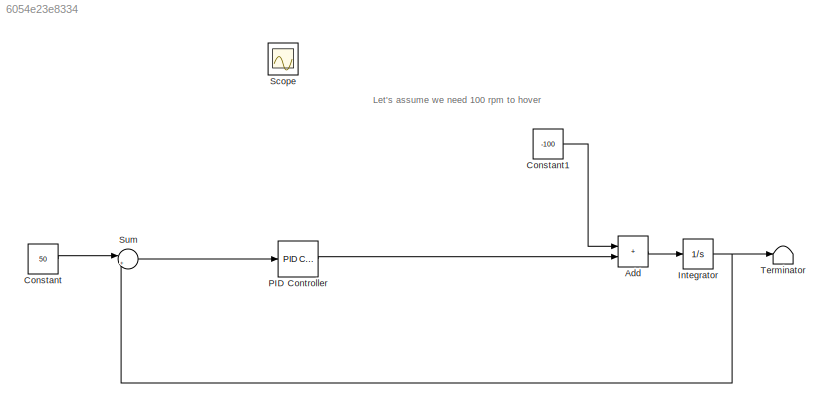
MODEL slx_6054e23e8334
KIND model
CONFIG AbsTol = auto
CONFIG EnableMultiTasking = off
CONFIG FixedStep = auto
CONFIG MaxStep = auto
CONFIG MinStep = auto
CONFIG RelTol = 1e-3
CONFIG SampleTimeConstraint = Unconstrained
CONFIG SolverName = VariableStepAuto
CONFIG StartTime = 0.0
CONFIG StopTime = 50
BLOCK [Sum] Add
  IconShape = rectangular
BLOCK [Constant] Constant
  Value = 50
BLOCK [Constant] Constant1
  Value = -100
BLOCK [Integrator] Integrator
BLOCK [Reference] PID Controller  REF=slpidlib/PID Controller
  LibrarySourceBlock = simulink/Continuous/PID Controller
  SourceBlock = slpidlib/PID Controller
  SourceType = PID 1dof
BLOCK [Scope] Scope
  Floating = off
  IOType = viewer
  NumInputPorts = 1
  ScopeSpecificationString = Simulink.scopes.TimeScopeBlockCfg('CurrentConfiguration', extmgr.ConfigurationSet(extmgr.Configuration('Core','General UI',true),extmgr.Configuration('Core','Source UI',true),extmgr.Configuration('Sources','WiredSimulink',true),extmgr.Configuration('Visuals','Time Domain',true,'SerializedDisplays',{struct('MinYLimReal','-17.88871','MaxYLimReal','76.36266','YLabelReal','','MinYLimMag','0.00000','Ma...<+1518ch>
BLOCK [Sum] Sum
  Inputs = |+-
BLOCK [Terminator] Terminator
ANNOTATION (root): Let's assume we need 100 rpm to hover
LINE Add:1 -> Integrator:1
LINE Constant1:1 -> Add:1
LINE Constant:1 -> Sum:1
NET Integrator:1 -> Sum:2, Terminator:1
LINE PID Controller:1 -> Add:2
LINE Sum:1 -> PID Controller:1
note: NET lines group one-source signal fan-out (src -> all destinations, sorted); 1:1 wires keep LINE
